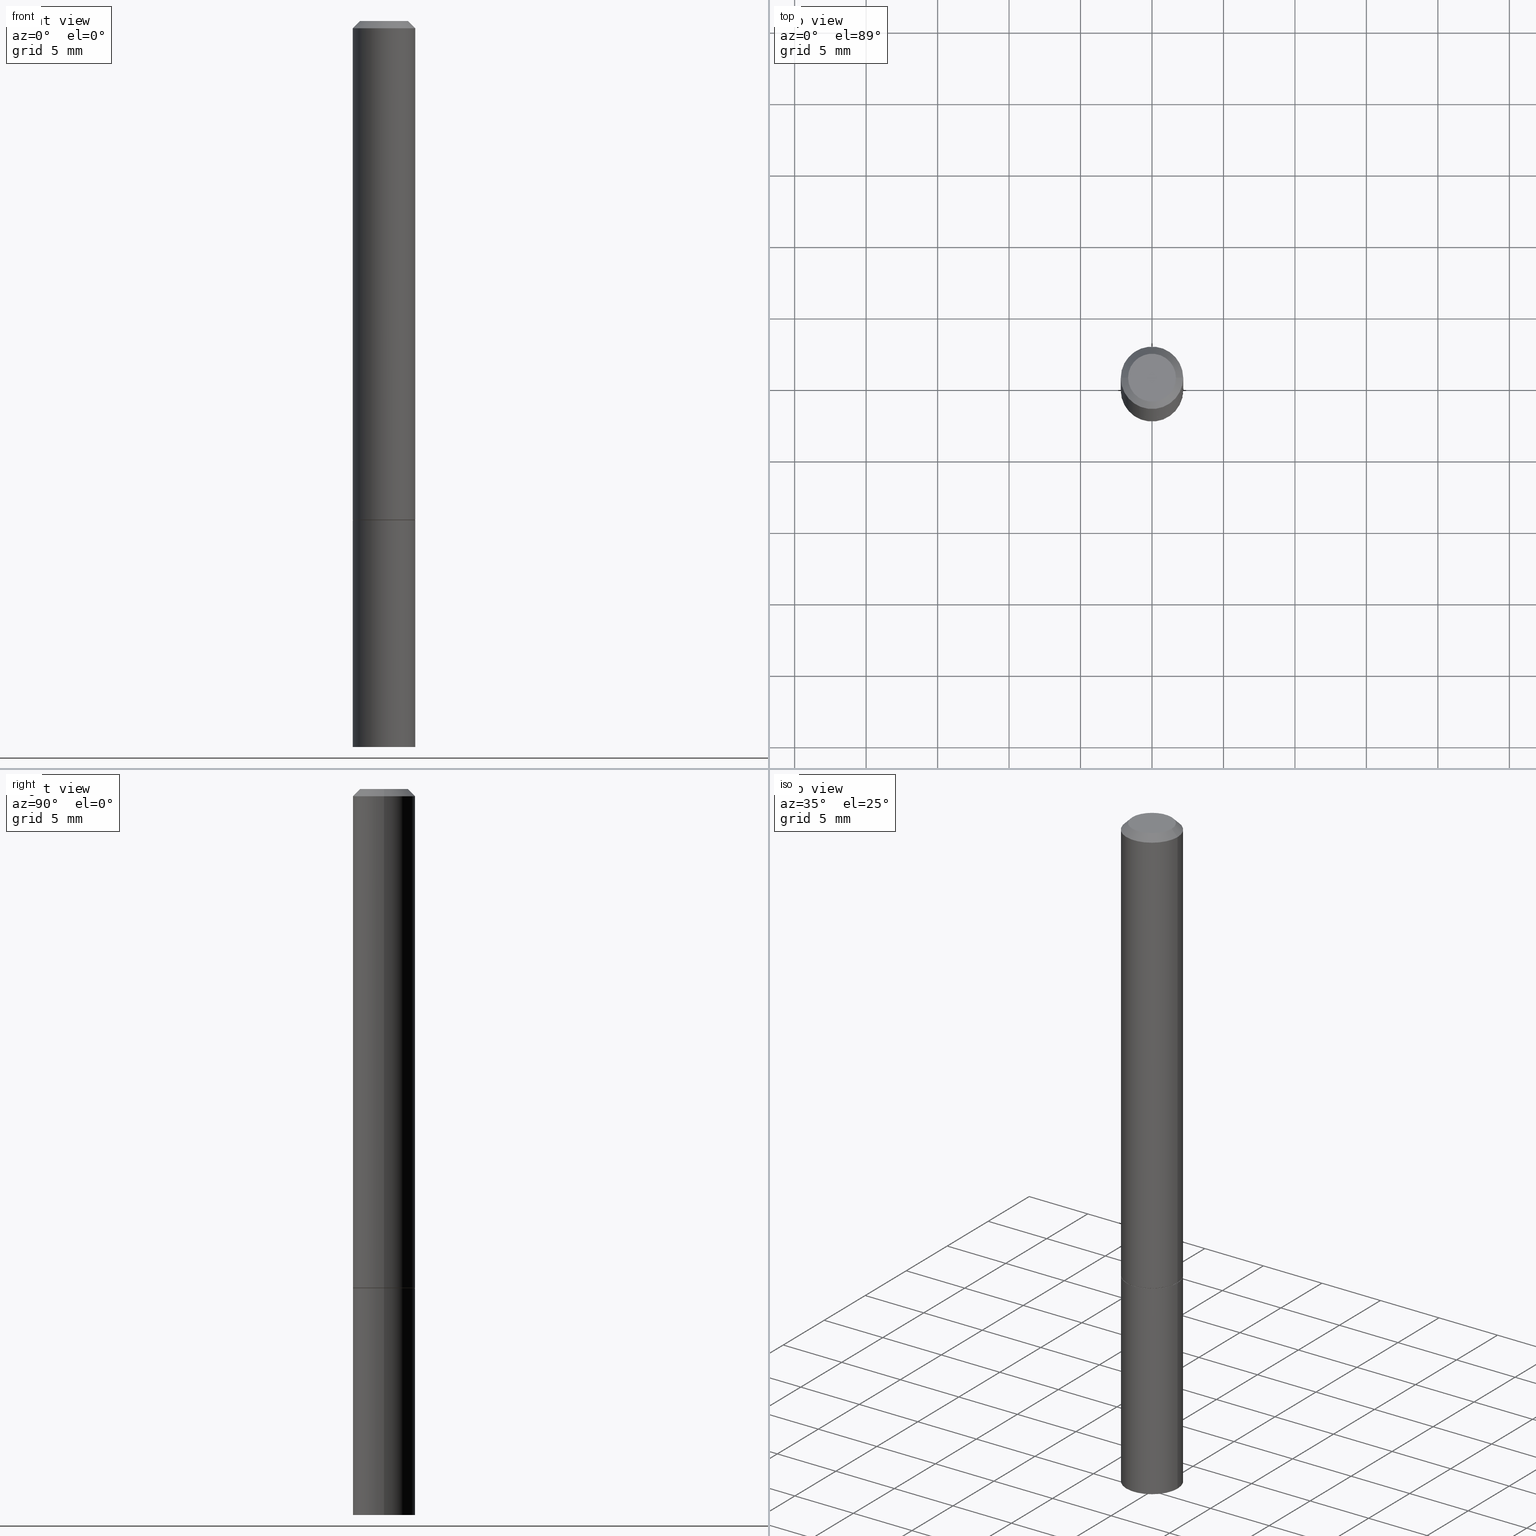
[diagram: canonical four-view strip — front | top / right | iso, engineering-drawing reading convention]
A machine part, canonical four-view strip (front | top / right | iso — engineering-drawing reading convention). The complete STEP part file that produces these views, byte-faithful:
ISO-10303-21;
HEADER;
FILE_DESCRIPTION (( 'STEP AP203' ),
    '1' );
FILE_NAME ('39021.STEP',
    '2023-03-21T20:43:48',
    ( '' ),
    ( '' ),
    'SwSTEP 2.0',
    'SolidWorks 2022',
    '' );
FILE_SCHEMA (( 'CONFIG_CONTROL_DESIGN' ));
ENDSEC;

DATA;
#1 = DIRECTION ( 'NONE',  ( -2.445468806185136877E-29, 3.491481338843145188E-15, 1.000000000000000000 ) ) ;
#2 = CARTESIAN_POINT ( 'NONE',  ( -0.08494999999999998386, -4.197180786881120035E-15, -1.375000000000000000 ) ) ;
#3 = ADVANCED_FACE ( 'NONE', ( #236 ), #348, .T. ) ;
#4 = CARTESIAN_POINT ( 'NONE',  ( 0.06594999999999982820, -5.559696363191780784E-16, 3.553944287850914187E-30 ) ) ;
#5 = AXIS2_PLACEMENT_3D ( 'NONE', #143, #55, #198 ) ;
#6 = CARTESIAN_POINT ( 'NONE',  ( 3.362519608504562260E-29, -4.800786840909324930E-15, -1.375000000000000000 ) ) ;
#7 = AXIS2_PLACEMENT_3D ( 'NONE', #299, #51, #78 ) ;
#8 = EDGE_LOOP ( 'NONE', ( #206, #50, #289, #317 ) ) ;
#9 = DIRECTION ( 'NONE',  ( 1.000000000000000000, -6.982962677686265922E-15, 4.876176775795935793E-29 ) ) ;
#10 = CARTESIAN_POINT ( 'NONE',  ( 3.362519608504562260E-29, -4.800786840909324930E-15, -1.375000000000000000 ) ) ;
#11 = ORIENTED_EDGE ( 'NONE', *, *, #95, .F. ) ;
#12 = EDGE_LOOP ( 'NONE', ( #178, #265 ) ) ;
#13 = DIRECTION ( 'NONE',  ( 1.000000000000000000, -6.982962677686267499E-15, 0.000000000000000000 ) ) ;
#14 =( LENGTH_UNIT ( ) NAMED_UNIT ( * ) SI_UNIT ( $, .METRE. ) );
#15 = AXIS2_PLACEMENT_3D ( 'NONE', #339, #16, #63 ) ;
#16 = DIRECTION ( 'NONE',  ( -2.445468806185136597E-29, 3.491481338843145583E-15, 1.000000000000000000 ) ) ;
#17 = EDGE_CURVE ( 'NONE', #286, #337, #106, .T. ) ;
#18 = DATE_TIME_ROLE ( 'classification_date' ) ;
#19 = EDGE_CURVE ( 'NONE', #72, #337, #71, .T. ) ;
#20 = AXIS2_PLACEMENT_3D ( 'NONE', #304, #135, #389 ) ;
#21 = ADVANCED_FACE ( 'NONE', ( #295 ), #330, .T. ) ;
#22 = PERSON_AND_ORGANIZATION_ROLE ( 'design_owner' ) ;
#23 = VERTEX_POINT ( 'NONE', #87 ) ;
#24 = DIRECTION ( 'NONE',  ( -2.445468806185136597E-29, 3.491481338843145583E-15, 1.000000000000000000 ) ) ;
#25 = ORIENTED_EDGE ( 'NONE', *, *, #190, .T. ) ;
#26 = FACE_OUTER_BOUND ( 'NONE', #224, .T. ) ;
#27 = ORIENTED_EDGE ( 'NONE', *, *, #214, .F. ) ;
#28 = CIRCLE ( 'NONE', #245, 0.08594999999999998475 ) ;
#29 = FACE_OUTER_BOUND ( 'NONE', #321, .T. ) ;
#30 = DIRECTION ( 'NONE',  ( 1.000000000000000000, -6.982962677686261977E-15, 0.000000000000000000 ) ) ;
#31 = PLANE ( 'NONE',  #134 ) ;
#32 = APPROVAL_STATUS ( 'not_yet_approved' ) ;
#33 = ADVANCED_BREP_SHAPE_REPRESENTATION ( '39021', ( #195, #75, #49 ), #91 ) ;
#34 = DIRECTION ( 'NONE',  ( 1.000000000000000000, -6.982962677686267499E-15, 0.000000000000000000 ) ) ;
#35 = CARTESIAN_POINT ( 'NONE',  ( 1.011582215798658042E-27, -1.444271307094001663E-13, -41.36557429152809817 ) ) ;
#36 = ORIENTED_EDGE ( 'NONE', *, *, #318, .T. ) ;
#37 = DIRECTION ( 'NONE',  ( 1.000000000000000000, -6.982962677686267499E-15, 4.876176775795936353E-29 ) ) ;
#38 = CC_DESIGN_PERSON_AND_ORGANIZATION_ASSIGNMENT ( #274, #147, ( #219 ) ) ;
#39 = CC_DESIGN_SECURITY_CLASSIFICATION ( #219, ( #194 ) ) ;
#40 = EDGE_LOOP ( 'NONE', ( #175, #270, #172, #338 ) ) ;
#41 = PERSON_AND_ORGANIZATION_ROLE ( 'design_supplier' ) ;
#42 = ORIENTED_EDGE ( 'NONE', *, *, #352, .T. ) ;
#43 = VECTOR ( 'NONE', #260, 39.37007874015748854 ) ;
#44 = CARTESIAN_POINT ( 'NONE',  ( 3.362519608504562260E-29, -4.800786840909324930E-15, -1.375000000000000000 ) ) ;
#45 = CC_DESIGN_PERSON_AND_ORGANIZATION_ASSIGNMENT ( #288, #22, ( #375 ) ) ;
#46 = AXIS2_PLACEMENT_3D ( 'NONE', #368, #68, #13 ) ;
#47 = COORDINATED_UNIVERSAL_TIME_OFFSET ( 5, 0, .BEHIND. ) ;
#48 = ORIENTED_EDGE ( 'NONE', *, *, #67, .T. ) ;
#49 = AXIS2_PLACEMENT_3D ( 'NONE', #150, #273, #254 ) ;
#50 = ORIENTED_EDGE ( 'NONE', *, *, #17, .T. ) ;
#51 = DIRECTION ( 'NONE',  ( -2.445468806185136597E-29, 3.491481338843145583E-15, 1.000000000000000000 ) ) ;
#52 = VERTEX_POINT ( 'NONE', #267 ) ;
#53 = DIRECTION ( 'NONE',  ( 1.000000000000000000, -6.982962677686261977E-15, 0.000000000000000000 ) ) ;
#54 = AXIS2_PLACEMENT_3D ( 'NONE', #294, #334, #58 ) ;
#55 = DIRECTION ( 'NONE',  ( -2.445468806185136597E-29, 3.491481338843145583E-15, 1.000000000000000000 ) ) ;
#56 = DIRECTION ( 'NONE',  ( -2.445468806185136877E-29, 3.491481338843145188E-15, 1.000000000000000000 ) ) ;
#57 = FACE_OUTER_BOUND ( 'NONE', #12, .T. ) ;
#58 = DIRECTION ( 'NONE',  ( 1.000000000000000000, -6.982962677686261977E-15, 0.000000000000000000 ) ) ;
#59 = DIRECTION ( 'NONE',  ( -1.000000000000000000, 6.982962677686265922E-15, 0.000000000000000000 ) ) ;
#60 = ORIENTED_EDGE ( 'NONE', *, *, #125, .T. ) ;
#61 = APPROVAL ( #281, 'UNSPECIFIED' ) ;
#62 = EDGE_LOOP ( 'NONE', ( #284, #177, #361, #227 ) ) ;
#63 = DIRECTION ( 'NONE',  ( 1.000000000000000000, -6.982962677686261977E-15, 0.000000000000000000 ) ) ;
#64 = VECTOR ( 'NONE', #243, 39.37007874015748143 ) ;
#65 = CC_DESIGN_APPROVAL ( #61, ( #219 ) ) ;
#66 =( NAMED_UNIT ( * ) PLANE_ANGLE_UNIT ( ) SI_UNIT ( $, .RADIAN. ) );
#67 = EDGE_CURVE ( 'NONE', #286, #357, #133, .T. ) ;
#68 = DIRECTION ( 'NONE',  ( -2.445468806185136597E-29, 3.491481338843145583E-15, 1.000000000000000000 ) ) ;
#69 =( CONVERSION_BASED_UNIT ( 'INCH', #369 ) LENGTH_UNIT ( ) NAMED_UNIT ( #73 ) );
#70 = VECTOR ( 'NONE', #1, 39.37007874015748143 ) ;
#71 = CIRCLE ( 'NONE', #5, 0.08594999999999998475 ) ;
#72 = VERTEX_POINT ( 'NONE', #240 ) ;
#73 = DIMENSIONAL_EXPONENTS ( 1.000000000000000000, 0.000000000000000000, 0.000000000000000000, 0.000000000000000000, 0.000000000000000000, 0.000000000000000000, 0.000000000000000000 ) ;
#74 = DIRECTION ( 'NONE',  ( 0.9986295347545742773, -7.033825938271998700E-15, -0.05233595624293709697 ) ) ;
#75 = MANIFOLD_SOLID_BREP ( 'Body-Move/Copy2[2]', #308 ) ;
#76 = CIRCLE ( 'NONE', #314, 0.06594999999999982820 ) ;
#77 = APPROVAL_PERSON_ORGANIZATION ( #122, #61, #313 ) ;
#78 = DIRECTION ( 'NONE',  ( 1.000000000000000000, -6.982962677686267499E-15, 4.876176775795935793E-29 ) ) ;
#79 = CARTESIAN_POINT ( 'NONE',  ( 0.08594999999999981821, -6.594894296853248617E-16, -0.02000000000000002123 ) ) ;
#80 = ORIENTED_EDGE ( 'NONE', *, *, #118, .T. ) ;
#81 = DIRECTION ( 'NONE',  ( -0.7071067811865232589, 7.493145998870265808E-15, 0.7071067811865715536 ) ) ;
#82 = DIRECTION ( 'NONE',  ( 1.000000000000000000, -6.982962677686267499E-15, 4.876176775795936353E-29 ) ) ;
#83 = AXIS2_PLACEMENT_3D ( 'NONE', #325, #170, #82 ) ;
#84 = LOCAL_TIME ( 16, 43, 48.00000000000000000, #279 ) ;
#85 = DIRECTION ( 'NONE',  ( 1.000000000000000000, -6.982962677686261977E-15, 0.000000000000000000 ) ) ;
#86 = FACE_OUTER_BOUND ( 'NONE', #303, .T. ) ;
#87 = CARTESIAN_POINT ( 'NONE',  ( 0.08594999999999990148, -7.572622480594752926E-15, -2.000000000000000000 ) ) ;
#88 = CARTESIAN_POINT ( 'NONE',  ( -0.08594999999999998475, -5.281163277912002145E-15, -1.375000000000000000 ) ) ;
#89 = ORIENTED_EDGE ( 'NONE', *, *, #201, .F. ) ;
#90 = AXIS2_PLACEMENT_3D ( 'NONE', #35, #296, #358 ) ;
#91 =( GEOMETRIC_REPRESENTATION_CONTEXT ( 3 ) GLOBAL_UNCERTAINTY_ASSIGNED_CONTEXT ( ( #239 ) ) GLOBAL_UNIT_ASSIGNED_CONTEXT ( ( #69, #66, #244 ) ) REPRESENTATION_CONTEXT ( 'NONE', 'WORKASPACE' ) );
#92 = CALENDAR_DATE ( 2023, 21, 3 ) ;
#93 = DIRECTION ( 'NONE',  ( -2.445468806185136597E-29, 3.491481338843145583E-15, 1.000000000000000000 ) ) ;
#94 = CARTESIAN_POINT ( 'NONE',  ( 0.000000000000000000, 0.000000000000000000, 0.000000000000000000 ) ) ;
#95 = EDGE_CURVE ( 'NONE', #164, #52, #110, .T. ) ;
#96 = ADVANCED_FACE ( 'NONE', ( #139 ), #142, .T. ) ;
#97 = APPROVAL ( #242, 'UNSPECIFIED' ) ;
#98 = CALENDAR_DATE ( 2023, 21, 3 ) ;
#99 = ORIENTED_EDGE ( 'NONE', *, *, #352, .F. ) ;
#100 = PRODUCT_DEFINITION_SHAPE ( 'NONE', 'NONE',  #323 ) ;
#101 = CARTESIAN_POINT ( 'NONE',  ( 0.08594999999999998475, -6.001856421471345220E-16, 4.191073938796606539E-30 ) ) ;
#102 = LOCAL_TIME ( 16, 43, 48.00000000000000000, #235 ) ;
#103 = VERTEX_POINT ( 'NONE', #331 ) ;
#104 = DIRECTION ( 'NONE',  ( 2.438088387897960049E-29, -3.491481338843145188E-15, -1.000000000000000000 ) ) ;
#105 = CARTESIAN_POINT ( 'NONE',  ( -0.08594999999999981821, 5.303560153702704350E-16, -0.02000000000000002123 ) ) ;
#106 = LINE ( 'NONE', #2, #179 ) ;
#107 = DIRECTION ( 'NONE',  ( -1.000000000000000000, 6.982962677686265922E-15, -4.876176775795935793E-29 ) ) ;
#108 = CARTESIAN_POINT ( 'NONE',  ( 0.000000000000000000, 0.000000000000000000, 0.000000000000000000 ) ) ;
#109 = CARTESIAN_POINT ( 'NONE',  ( 4.605263885934080242E-16, 0.06594999999999982820, -2.302631942967048503E-16 ) ) ;
#110 = CIRCLE ( 'NONE', #123, 0.08594999999999981821 ) ;
#111 = DIRECTION ( 'NONE',  ( -2.445468806185136597E-29, 3.491481338843145583E-15, 1.000000000000000000 ) ) ;
#112 = APPROVAL_DATE_TIME ( #174, #61 ) ;
#113 = CARTESIAN_POINT ( 'NONE',  ( 0.08594999999999981821, -6.594894296853248617E-16, -0.02000000000000002123 ) ) ;
#114 = DATE_AND_TIME ( #268, #366 ) ;
#115 = CARTESIAN_POINT ( 'NONE',  ( -2.496334766206191209E-19, -6.967235479355044692E-15, -1.995495551370623177 ) ) ;
#116 = DIRECTION ( 'NONE',  ( 1.000000000000000000, -6.982962677686266711E-15, 4.876176775795936353E-29 ) ) ;
#117 = AXIS2_PLACEMENT_3D ( 'NONE', #213, #277, #9 ) ;
#118 = EDGE_CURVE ( 'NONE', #220, #378, #287, .T. ) ;
#119 = CIRCLE ( 'NONE', #380, 0.08594999999999998475 ) ;
#120 = FACE_OUTER_BOUND ( 'NONE', #8, .T. ) ;
#121 = DIRECTION ( 'NONE',  ( 1.000000000000000000, -6.982962677686261977E-15, 0.000000000000000000 ) ) ;
#122 = PERSON_AND_ORGANIZATION ( #379, #373 ) ;
#123 = AXIS2_PLACEMENT_3D ( 'NONE', #362, #298, #34 ) ;
#124 = EDGE_CURVE ( 'NONE', #161, #23, #384, .T. ) ;
#125 = EDGE_CURVE ( 'NONE', #337, #72, #119, .T. ) ;
#126 = VERTEX_POINT ( 'NONE', #4 ) ;
#127 = CONICAL_SURFACE ( 'NONE', #210, 0.08594999999999981821, 0.7853981633974476129 ) ;
#128 = AXIS2_PLACEMENT_3D ( 'NONE', #264, #24, #215 ) ;
#129 = COORDINATED_UNIVERSAL_TIME_OFFSET ( 5, 0, .BEHIND. ) ;
#130 = APPLICATION_PROTOCOL_DEFINITION ( 'international standard', 'config_control_design', 1994, #311 ) ;
#131 = ORIENTED_EDGE ( 'NONE', *, *, #214, .T. ) ;
#132 = DIRECTION ( 'NONE',  ( 2.445468806185136597E-29, -3.491481338843145583E-15, -1.000000000000000000 ) ) ;
#133 = CIRCLE ( 'NONE', #152, 0.08494999999999998386 ) ;
#134 = AXIS2_PLACEMENT_3D ( 'NONE', #225, #291, #107 ) ;
#135 = DIRECTION ( 'NONE',  ( 2.445468806185136597E-29, -3.491481338843145583E-15, -1.000000000000000000 ) ) ;
#136 = EDGE_CURVE ( 'NONE', #103, #52, #204, .T. ) ;
#137 = ORIENTED_EDGE ( 'NONE', *, *, #353, .F. ) ;
#138 = CARTESIAN_POINT ( 'NONE',  ( -0.08594999999999997087, -1.822851011787864341E-15, -1.373999999999999888 ) ) ;
#139 = FACE_OUTER_BOUND ( 'NONE', #327, .T. ) ;
#140 = EDGE_CURVE ( 'NONE', #337, #52, #386, .T. ) ;
#141 = CYLINDRICAL_SURFACE ( 'NONE', #128, 0.08594999999999998475 ) ;
#142 = CONICAL_SURFACE ( 'NONE', #309, 0.08494999999999998386, 0.7853981633974141952 ) ;
#143 = CARTESIAN_POINT ( 'NONE',  ( 3.360074139698377778E-29, -4.797295359570481134E-15, -1.373999999999999888 ) ) ;
#144 = ORIENTED_EDGE ( 'NONE', *, *, #359, .F. ) ;
#145 = ORIENTED_EDGE ( 'NONE', *, *, #140, .T. ) ;
#146 = APPROVAL_DATE_TIME ( #159, #252 ) ;
#147 = PERSON_AND_ORGANIZATION_ROLE ( 'classification_officer' ) ;
#148 = COORDINATED_UNIVERSAL_TIME_OFFSET ( 5, 0, .BEHIND. ) ;
#149 = CARTESIAN_POINT ( 'NONE',  ( -0.08594999999999990148, -6.382777035539157728E-15, -2.000000000000000000 ) ) ;
#150 = CARTESIAN_POINT ( 'NONE',  ( 0.000000000000000000, 0.000000000000000000, 0.000000000000000000 ) ) ;
#151 = SECURITY_CLASSIFICATION_LEVEL ( 'unclassified' ) ;
#152 = AXIS2_PLACEMENT_3D ( 'NONE', #10, #168, #30 ) ;
#153 = LOCAL_TIME ( 16, 43, 48.00000000000000000, #47 ) ;
#154 = PERSON_AND_ORGANIZATION ( #379, #373 ) ;
#155 = CARTESIAN_POINT ( 'NONE',  ( 3.362519608504562260E-29, -4.800786840909324930E-15, -1.375000000000000000 ) ) ;
#156 = VECTOR ( 'NONE', #165, 39.37007874015748854 ) ;
#157 = DESIGN_CONTEXT ( 'detailed design', #311, 'design' ) ;
#158 = ADVANCED_FACE ( 'NONE', ( #247 ), #249, .F. ) ;
#159 = DATE_AND_TIME ( #367, #102 ) ;
#160 = ORIENTED_EDGE ( 'NONE', *, *, #190, .F. ) ;
#161 = VERTEX_POINT ( 'NONE', #370 ) ;
#162 = EDGE_LOOP ( 'NONE', ( #89, #293 ) ) ;
#163 = CARTESIAN_POINT ( 'NONE',  ( 0.000000000000000000, 0.000000000000000000, 0.000000000000000000 ) ) ;
#164 = VERTEX_POINT ( 'NONE', #113 ) ;
#165 = DIRECTION ( 'NONE',  ( 0.7071067811865232589, -2.468850131082003836E-15, 0.7071067811865715536 ) ) ;
#166 = EDGE_CURVE ( 'NONE', #333, #378, #302, .T. ) ;
#167 = AXIS2_PLACEMENT_3D ( 'NONE', #238, #93, #207 ) ;
#168 = DIRECTION ( 'NONE',  ( -2.445468806185136597E-29, 3.491481338843145583E-15, 1.000000000000000000 ) ) ;
#169 = CARTESIAN_POINT ( 'NONE',  ( 2.496334767182175468E-19, -6.967235479355044692E-15, -1.995495551370623177 ) ) ;
#170 = DIRECTION ( 'NONE',  ( -2.445468806185136597E-29, 3.491481338843145583E-15, 1.000000000000000000 ) ) ;
#171 = EDGE_CURVE ( 'NONE', #52, #164, #285, .T. ) ;
#172 = ORIENTED_EDGE ( 'NONE', *, *, #95, .T. ) ;
#173 = FACE_OUTER_BOUND ( 'NONE', #230, .T. ) ;
#174 = DATE_AND_TIME ( #98, #153 ) ;
#175 = ORIENTED_EDGE ( 'NONE', *, *, #315, .F. ) ;
#176 = ORIENTED_EDGE ( 'NONE', *, *, #359, .T. ) ;
#177 = ORIENTED_EDGE ( 'NONE', *, *, #318, .F. ) ;
#178 = ORIENTED_EDGE ( 'NONE', *, *, #166, .T. ) ;
#179 = VECTOR ( 'NONE', #81, 39.37007874015748854 ) ;
#180 = DIRECTION ( 'NONE',  ( -2.445468806185136597E-29, 3.491481338843145583E-15, 1.000000000000000000 ) ) ;
#181 = CIRCLE ( 'NONE', #7, 0.06594999999999982820 ) ;
#182 = DIRECTION ( 'NONE',  ( 1.000000000000000000, -6.982962677686261977E-15, 0.000000000000000000 ) ) ;
#183 = ORIENTED_EDGE ( 'NONE', *, *, #140, .F. ) ;
#184 = DIRECTION ( 'NONE',  ( -2.445468806185136877E-29, 3.491481338843145188E-15, 1.000000000000000000 ) ) ;
#185 = PERSON_AND_ORGANIZATION_ROLE ( 'creator' ) ;
#186 = LINE ( 'NONE', #269, #349 ) ;
#187 = APPLICATION_PROTOCOL_DEFINITION ( 'international standard', 'config_control_design', 1994, #342 ) ;
#188 = CLOSED_SHELL ( 'NONE', ( #374, #344, #248, #388, #332 ) ) ;
#189 = CC_DESIGN_PERSON_AND_ORGANIZATION_ASSIGNMENT ( #305, #41, ( #194 ) ) ;
#190 = EDGE_CURVE ( 'NONE', #72, #164, #186, .T. ) ;
#191 = ORIENTED_EDGE ( 'NONE', *, *, #237, .T. ) ;
#192 = MECHANICAL_CONTEXT ( 'NONE', #342, 'mechanical' ) ;
#193 = CONICAL_SURFACE ( 'NONE', #377, 751.2258538476644389, 1.518436449235073482 ) ;
#194 = PRODUCT_DEFINITION_FORMATION_WITH_SPECIFIED_SOURCE ( 'ANY', '', #375, .NOT_KNOWN. ) ;
#195 = MANIFOLD_SOLID_BREP ( 'Body-Move/Copy2[1]', #188 ) ;
#196 = LINE ( 'NONE', #365, #156 ) ;
#197 = LINE ( 'NONE', #101, #363 ) ;
#198 = DIRECTION ( 'NONE',  ( 1.000000000000000000, -6.982962677686261977E-15, 0.000000000000000000 ) ) ;
#199 = CARTESIAN_POINT ( 'NONE',  ( 4.890937612370278413E-31, -6.982962677686297772E-17, -0.02000000000000002123 ) ) ;
#200 = AXIS2_PLACEMENT_3D ( 'NONE', #155, #310, #182 ) ;
#201 = EDGE_CURVE ( 'NONE', #357, #286, #340, .T. ) ;
#202 = PERSON_AND_ORGANIZATION ( #379, #373 ) ;
#203 = CARTESIAN_POINT ( 'NONE',  ( 0.08494999999999998386, -5.393989520378773141E-15, -1.375000000000000000 ) ) ;
#204 = LINE ( 'NONE', #105, #350 ) ;
#205 = ORIENTED_EDGE ( 'NONE', *, *, #125, .F. ) ;
#206 = ORIENTED_EDGE ( 'NONE', *, *, #201, .T. ) ;
#207 = DIRECTION ( 'NONE',  ( 1.000000000000000000, -6.982962677686261977E-15, 0.000000000000000000 ) ) ;
#208 = ORIENTED_EDGE ( 'NONE', *, *, #171, .F. ) ;
#209 = SHAPE_DEFINITION_REPRESENTATION ( #100, #33 ) ;
#210 = AXIS2_PLACEMENT_3D ( 'NONE', #199, #132, #229 ) ;
#211 = ORIENTED_EDGE ( 'NONE', *, *, #166, .F. ) ;
#212 = APPROVAL_DATE_TIME ( #241, #97 ) ;
#213 = CARTESIAN_POINT ( 'NONE',  ( 3.362519608504562260E-29, -4.800786840909324930E-15, -1.375000000000000000 ) ) ;
#214 = EDGE_CURVE ( 'NONE', #220, #23, #354, .T. ) ;
#215 = DIRECTION ( 'NONE',  ( 1.000000000000000000, -6.982962677686266711E-15, 4.876176775795936353E-29 ) ) ;
#216 = DIRECTION ( 'NONE',  ( 2.445468806185136597E-29, -3.491481338843145583E-15, -1.000000000000000000 ) ) ;
#217 = CC_DESIGN_DATE_AND_TIME_ASSIGNMENT ( #324, #18, ( #219 ) ) ;
#218 = AXIS2_PLACEMENT_3D ( 'NONE', #44, #280, #121 ) ;
#219 = SECURITY_CLASSIFICATION ( '', '', #151 ) ;
#220 = VERTEX_POINT ( 'NONE', #149 ) ;
#221 = ORIENTED_EDGE ( 'NONE', *, *, #237, .F. ) ;
#222 = CARTESIAN_POINT ( 'NONE',  ( -0.08594999999999998475, 6.107114813858060014E-16, -4.227824710074091590E-30 ) ) ;
#223 = CALENDAR_DATE ( 2023, 21, 3 ) ;
#224 = EDGE_LOOP ( 'NONE', ( #300, #145, #11, #160 ) ) ;
#225 = CARTESIAN_POINT ( 'NONE',  ( 6.001856421471681472E-16, 0.08594999999999519691, -1.375000000000000222 ) ) ;
#226 = CC_DESIGN_APPROVAL ( #97, ( #194 ) ) ;
#227 = ORIENTED_EDGE ( 'NONE', *, *, #171, .T. ) ;
#228 = DIRECTION ( 'NONE',  ( 1.000000000000000000, -6.982962677686267499E-15, 4.876176775795935793E-29 ) ) ;
#229 = DIRECTION ( 'NONE',  ( -1.000000000000000000, 6.982962677686267499E-15, 0.000000000000000000 ) ) ;
#230 = EDGE_LOOP ( 'NONE', ( #176, #80, #211, #99 ) ) ;
#231 = CARTESIAN_POINT ( 'NONE',  ( 3.360074139698377778E-29, -4.797295359570481134E-15, -1.373999999999999888 ) ) ;
#232 = DIRECTION ( 'NONE',  ( -2.445468806185136597E-29, 3.491481338843145583E-15, 1.000000000000000000 ) ) ;
#233 = VECTOR ( 'NONE', #74, 39.37007874015748143 ) ;
#234 = CC_DESIGN_APPROVAL ( #252, ( #323 ) ) ;
#235 = COORDINATED_UNIVERSAL_TIME_OFFSET ( 5, 0, .BEHIND. ) ;
#236 = FACE_OUTER_BOUND ( 'NONE', #62, .T. ) ;
#237 = EDGE_CURVE ( 'NONE', #161, #220, #272, .T. ) ;
#238 = CARTESIAN_POINT ( 'NONE',  ( 3.362519608504562260E-29, -4.800786840909324930E-15, -1.375000000000000000 ) ) ;
#239 = UNCERTAINTY_MEASURE_WITH_UNIT (LENGTH_MEASURE( 1.000000000000000082E-05 ), #69, 'distance_accuracy_value', 'NONE');
#240 = CARTESIAN_POINT ( 'NONE',  ( 0.08594999999999998475, -5.397481001717615360E-15, -1.373999999999999888 ) ) ;
#241 = DATE_AND_TIME ( #92, #84 ) ;
#242 = APPROVAL_STATUS ( 'not_yet_approved' ) ;
#243 = DIRECTION ( 'NONE',  ( -0.9986295347545742773, 6.790662755453666100E-15, -0.05233595624293709697 ) ) ;
#244 =( NAMED_UNIT ( * ) SI_UNIT ( $, .STERADIAN. ) SOLID_ANGLE_UNIT ( ) );
#245 = AXIS2_PLACEMENT_3D ( 'NONE', #262, #329, #53 ) ;
#246 = ADVANCED_FACE ( 'NONE', ( #120 ), #371, .T. ) ;
#247 = FACE_OUTER_BOUND ( 'NONE', #162, .T. ) ;
#248 = ADVANCED_FACE ( 'NONE', ( #376 ), #193, .F. ) ;
#249 = PLANE ( 'NONE',  #117 ) ;
#250 = AXIS2_PLACEMENT_3D ( 'NONE', #109, #104, #390 ) ;
#251 = APPROVAL_PERSON_ORGANIZATION ( #202, #252, #263 ) ;
#252 = APPROVAL ( #32, 'UNSPECIFIED' ) ;
#253 = ORIENTED_EDGE ( 'NONE', *, *, #124, .F. ) ;
#254 = DIRECTION ( 'NONE',  ( 1.000000000000000000, 0.000000000000000000, 0.000000000000000000 ) ) ;
#255 = CYLINDRICAL_SURFACE ( 'NONE', #83, 0.08594999999999990148 ) ;
#256 = CARTESIAN_POINT ( 'NONE',  ( -0.08494999999999998386, -4.191882332532897633E-15, -1.375000000000000000 ) ) ;
#257 = CONICAL_SURFACE ( 'NONE', #90, 751.2258538476644389, 1.518436449235073482 ) ;
#258 = CC_DESIGN_PERSON_AND_ORGANIZATION_ASSIGNMENT ( #306, #345, ( #194 ) ) ;
#259 = DIRECTION ( 'NONE',  ( 1.000000000000000000, -6.982962677686261977E-15, 0.000000000000000000 ) ) ;
#260 = DIRECTION ( 'NONE',  ( 0.7071067811865469066, -7.319954787623252890E-15, -0.7071067811865479058 ) ) ;
#261 = CARTESIAN_POINT ( 'NONE',  ( -0.08594999999999990148, 6.107114813858054097E-16, -4.227824710074086685E-30 ) ) ;
#262 = CARTESIAN_POINT ( 'NONE',  ( 3.362519608504562260E-29, -4.800786840909324930E-15, -1.375000000000000000 ) ) ;
#263 = APPROVAL_ROLE ( '' ) ;
#264 = CARTESIAN_POINT ( 'NONE',  ( 0.000000000000000000, 0.000000000000000000, 0.000000000000000000 ) ) ;
#265 = ORIENTED_EDGE ( 'NONE', *, *, #353, .T. ) ;
#266 = CYLINDRICAL_SURFACE ( 'NONE', #355, 0.08594999999999998475 ) ;
#267 = CARTESIAN_POINT ( 'NONE',  ( -0.08594999999999981821, 5.303560153702704350E-16, -0.02000000000000002123 ) ) ;
#268 = CALENDAR_DATE ( 2023, 21, 3 ) ;
#269 = CARTESIAN_POINT ( 'NONE',  ( 0.08594999999999990148, -6.001856421471340290E-16, 4.191073938796602335E-30 ) ) ;
#270 = ORIENTED_EDGE ( 'NONE', *, *, #278, .T. ) ;
#271 = PERSON_AND_ORGANIZATION ( #379, #373 ) ;
#272 = LINE ( 'NONE', #115, #64 ) ;
#273 = DIRECTION ( 'NONE',  ( 0.000000000000000000, 0.000000000000000000, 1.000000000000000000 ) ) ;
#274 = PERSON_AND_ORGANIZATION ( #379, #373 ) ;
#275 = ORIENTED_EDGE ( 'NONE', *, *, #118, .F. ) ;
#276 = CIRCLE ( 'NONE', #54, 0.08594999999999998475 ) ;
#277 = DIRECTION ( 'NONE',  ( -2.438088387897960049E-29, 3.491481338843145188E-15, 1.000000000000000000 ) ) ;
#278 = EDGE_CURVE ( 'NONE', #126, #164, #312, .T. ) ;
#279 = COORDINATED_UNIVERSAL_TIME_OFFSET ( 5, 0, .BEHIND. ) ;
#280 = DIRECTION ( 'NONE',  ( -2.445468806185136597E-29, 3.491481338843145583E-15, 1.000000000000000000 ) ) ;
#281 = APPROVAL_STATUS ( 'not_yet_approved' ) ;
#282 = VECTOR ( 'NONE', #56, 39.37007874015748143 ) ;
#283 = ADVANCED_FACE ( 'NONE', ( #26 ), #255, .T. ) ;
#284 = ORIENTED_EDGE ( 'NONE', *, *, #278, .F. ) ;
#285 = CIRCLE ( 'NONE', #46, 0.08594999999999981821 ) ;
#286 = VERTEX_POINT ( 'NONE', #256 ) ;
#287 = LINE ( 'NONE', #222, #282 ) ;
#288 = PERSON_AND_ORGANIZATION ( #379, #373 ) ;
#289 = ORIENTED_EDGE ( 'NONE', *, *, #19, .F. ) ;
#290 = ORIENTED_EDGE ( 'NONE', *, *, #124, .T. ) ;
#291 = DIRECTION ( 'NONE',  ( 2.438088387897960049E-29, -3.491481338843145188E-15, -1.000000000000000000 ) ) ;
#292 = CC_DESIGN_DATE_AND_TIME_ASSIGNMENT ( #114, #346, ( #323 ) ) ;
#293 = ORIENTED_EDGE ( 'NONE', *, *, #67, .F. ) ;
#294 = CARTESIAN_POINT ( 'NONE',  ( 4.890937612370273194E-29, -6.982962677686291165E-15, -2.000000000000000000 ) ) ;
#295 = FACE_OUTER_BOUND ( 'NONE', #351, .T. ) ;
#296 = DIRECTION ( 'NONE',  ( 2.445468806185136597E-29, -3.491481338843145583E-15, -1.000000000000000000 ) ) ;
#297 = EDGE_CURVE ( 'NONE', #357, #72, #196, .T. ) ;
#298 = DIRECTION ( 'NONE',  ( -2.445468806185136597E-29, 3.491481338843145583E-15, 1.000000000000000000 ) ) ;
#299 = CARTESIAN_POINT ( 'NONE',  ( 0.000000000000000000, 0.000000000000000000, 0.000000000000000000 ) ) ;
#300 = ORIENTED_EDGE ( 'NONE', *, *, #19, .T. ) ;
#301 = ORIENTED_EDGE ( 'NONE', *, *, #297, .T. ) ;
#302 = CIRCLE ( 'NONE', #167, 0.08594999999999998475 ) ;
#303 = EDGE_LOOP ( 'NONE', ( #221, #290, #27 ) ) ;
#304 = CARTESIAN_POINT ( 'NONE',  ( 4.890937612370278413E-31, -6.982962677686297772E-17, -0.02000000000000002123 ) ) ;
#305 = PERSON_AND_ORGANIZATION ( #379, #373 ) ;
#306 = PERSON_AND_ORGANIZATION ( #379, #373 ) ;
#307 = ADVANCED_FACE ( 'NONE', ( #29 ), #387, .F. ) ;
#308 = CLOSED_SHELL ( 'NONE', ( #246, #283, #336, #3, #21, #96, #158, #307 ) ) ;
#309 = AXIS2_PLACEMENT_3D ( 'NONE', #6, #326, #259 ) ;
#310 = DIRECTION ( 'NONE',  ( -2.445468806185136597E-29, 3.491481338843145583E-15, 1.000000000000000000 ) ) ;
#311 = APPLICATION_CONTEXT ( 'configuration controlled 3d designs of mechanical parts and assemblies' ) ;
#312 = LINE ( 'NONE', #79, #43 ) ;
#313 = APPROVAL_ROLE ( '' ) ;
#314 = AXIS2_PLACEMENT_3D ( 'NONE', #163, #232, #228 ) ;
#315 = EDGE_CURVE ( 'NONE', #126, #103, #181, .T. ) ;
#316 = CARTESIAN_POINT ( 'NONE',  ( 1.011582215798658042E-27, -1.444271307094001663E-13, -41.36557429152809817 ) ) ;
#317 = ORIENTED_EDGE ( 'NONE', *, *, #297, .F. ) ;
#318 = EDGE_CURVE ( 'NONE', #103, #126, #76, .T. ) ;
#319 = ORIENTED_EDGE ( 'NONE', *, *, #17, .F. ) ;
#320 = AXIS2_PLACEMENT_3D ( 'NONE', #108, #111, #37 ) ;
#321 = EDGE_LOOP ( 'NONE', ( #36, #383 ) ) ;
#322 = LOCAL_TIME ( 16, 43, 48.00000000000000000, #129 ) ;
#323 = PRODUCT_DEFINITION ( 'UNKNOWN', '', #194, #157 ) ;
#324 = DATE_AND_TIME ( #223, #322 ) ;
#325 = CARTESIAN_POINT ( 'NONE',  ( 0.000000000000000000, 0.000000000000000000, 0.000000000000000000 ) ) ;
#326 = DIRECTION ( 'NONE',  ( -2.445468806185136597E-29, 3.491481338843145583E-15, 1.000000000000000000 ) ) ;
#327 = EDGE_LOOP ( 'NONE', ( #319, #48, #301, #205 ) ) ;
#328 = EDGE_LOOP ( 'NONE', ( #253, #191, #144 ) ) ;
#329 = DIRECTION ( 'NONE',  ( -2.445468806185136597E-29, 3.491481338843145583E-15, 1.000000000000000000 ) ) ;
#330 = CYLINDRICAL_SURFACE ( 'NONE', #320, 0.08594999999999990148 ) ;
#331 = CARTESIAN_POINT ( 'NONE',  ( -0.06594999999999982820, 4.954412019818392789E-16, -3.342610388892703263E-30 ) ) ;
#332 = ADVANCED_FACE ( 'NONE', ( #57 ), #31, .F. ) ;
#333 = VERTEX_POINT ( 'NONE', #356 ) ;
#334 = DIRECTION ( 'NONE',  ( -2.445468806185136597E-29, 3.491481338843145583E-15, 1.000000000000000000 ) ) ;
#335 = DIRECTION ( 'NONE',  ( -0.7071067811865469066, 2.468850131082251144E-15, -0.7071067811865479058 ) ) ;
#336 = ADVANCED_FACE ( 'NONE', ( #385 ), #127, .T. ) ;
#337 = VERTEX_POINT ( 'NONE', #138 ) ;
#338 = ORIENTED_EDGE ( 'NONE', *, *, #136, .F. ) ;
#339 = CARTESIAN_POINT ( 'NONE',  ( 4.890937612370273194E-29, -6.982962677686291165E-15, -2.000000000000000000 ) ) ;
#340 = CIRCLE ( 'NONE', #200, 0.08494999999999998386 ) ;
#341 = APPROVAL_PERSON_ORGANIZATION ( #271, #97, #372 ) ;
#342 = APPLICATION_CONTEXT ( 'configuration controlled 3d designs of mechanical parts and assemblies' ) ;
#343 = CC_DESIGN_PERSON_AND_ORGANIZATION_ASSIGNMENT ( #154, #185, ( #323 ) ) ;
#344 = ADVANCED_FACE ( 'NONE', ( #86 ), #257, .F. ) ;
#345 = PERSON_AND_ORGANIZATION_ROLE ( 'creator' ) ;
#346 = DATE_TIME_ROLE ( 'creation_date' ) ;
#347 = FACE_OUTER_BOUND ( 'NONE', #381, .T. ) ;
#348 = CONICAL_SURFACE ( 'NONE', #20, 0.08594999999999981821, 0.7853981633974476129 ) ;
#349 = VECTOR ( 'NONE', #184, 39.37007874015748143 ) ;
#350 = VECTOR ( 'NONE', #335, 39.37007874015748854 ) ;
#351 = EDGE_LOOP ( 'NONE', ( #183, #60, #25, #208 ) ) ;
#352 = EDGE_CURVE ( 'NONE', #23, #333, #197, .T. ) ;
#353 = EDGE_CURVE ( 'NONE', #378, #333, #28, .T. ) ;
#354 = CIRCLE ( 'NONE', #15, 0.08594999999999998475 ) ;
#355 = AXIS2_PLACEMENT_3D ( 'NONE', #94, #180, #116 ) ;
#356 = CARTESIAN_POINT ( 'NONE',  ( 0.08594999999999998475, -5.400972483056459156E-15, -1.375000000000000000 ) ) ;
#357 = VERTEX_POINT ( 'NONE', #203 ) ;
#358 = DIRECTION ( 'NONE',  ( -1.000000000000000000, 6.982962677686265922E-15, 0.000000000000000000 ) ) ;
#359 = EDGE_CURVE ( 'NONE', #23, #220, #276, .T. ) ;
#360 = DIRECTION ( 'NONE',  ( -2.445468806185136877E-29, 3.491481338843145188E-15, 1.000000000000000000 ) ) ;
#361 = ORIENTED_EDGE ( 'NONE', *, *, #136, .T. ) ;
#362 = CARTESIAN_POINT ( 'NONE',  ( 4.890937612370278413E-31, -6.982962677686297772E-17, -0.02000000000000002123 ) ) ;
#363 = VECTOR ( 'NONE', #360, 39.37007874015748143 ) ;
#364 = DIRECTION ( 'NONE',  ( -2.445468806185136597E-29, 3.491481338843145583E-15, 1.000000000000000000 ) ) ;
#365 = CARTESIAN_POINT ( 'NONE',  ( 0.08494999999999998386, -5.393989520378773141E-15, -1.375000000000000000 ) ) ;
#366 = LOCAL_TIME ( 16, 43, 48.00000000000000000, #148 ) ;
#367 = CALENDAR_DATE ( 2023, 21, 3 ) ;
#368 = CARTESIAN_POINT ( 'NONE',  ( 4.890937612370278413E-31, -6.982962677686297772E-17, -0.02000000000000002123 ) ) ;
#369 = LENGTH_MEASURE_WITH_UNIT ( LENGTH_MEASURE( 0.02539999999999999897 ), #14 );
#370 = CARTESIAN_POINT ( 'NONE',  ( 4.879747805633000820E-29, -6.967485112831714072E-15, -1.995495551370623177 ) ) ;
#371 = CONICAL_SURFACE ( 'NONE', #218, 0.08494999999999998386, 0.7853981633974141952 ) ;
#372 = APPROVAL_ROLE ( '' ) ;
#373 = ORGANIZATION ( 'UNSPECIFIED', 'UNSPECIFIED', '' ) ;
#374 = ADVANCED_FACE ( 'NONE', ( #173 ), #141, .T. ) ;
#375 = PRODUCT ( '39021', '39021', '', ( #192 ) ) ;
#376 = FACE_OUTER_BOUND ( 'NONE', #328, .T. ) ;
#377 = AXIS2_PLACEMENT_3D ( 'NONE', #316, #216, #59 ) ;
#378 = VERTEX_POINT ( 'NONE', #88 ) ;
#379 = PERSON ( 'UNSPECIFIED', 'UNSPECIFIED', 'UNSPECIFIED', ('UNSPECIFIED'), ('UNSPECIFIED'), ('UNSPECIFIED') ) ;
#380 = AXIS2_PLACEMENT_3D ( 'NONE', #231, #364, #85 ) ;
#381 = EDGE_LOOP ( 'NONE', ( #275, #131, #42, #137 ) ) ;
#382 = PRODUCT_RELATED_PRODUCT_CATEGORY ( 'detail', '', ( #375 ) ) ;
#383 = ORIENTED_EDGE ( 'NONE', *, *, #315, .T. ) ;
#384 = LINE ( 'NONE', #169, #233 ) ;
#385 = FACE_OUTER_BOUND ( 'NONE', #40, .T. ) ;
#386 = LINE ( 'NONE', #261, #70 ) ;
#387 = PLANE ( 'NONE',  #250 ) ;
#388 = ADVANCED_FACE ( 'NONE', ( #347 ), #266, .T. ) ;
#389 = DIRECTION ( 'NONE',  ( -1.000000000000000000, 6.982962677686267499E-15, 0.000000000000000000 ) ) ;
#390 = DIRECTION ( 'NONE',  ( -1.000000000000000000, 6.982962677686265922E-15, -4.876176775795935793E-29 ) ) ;
ENDSEC;
END-ISO-10303-21;
